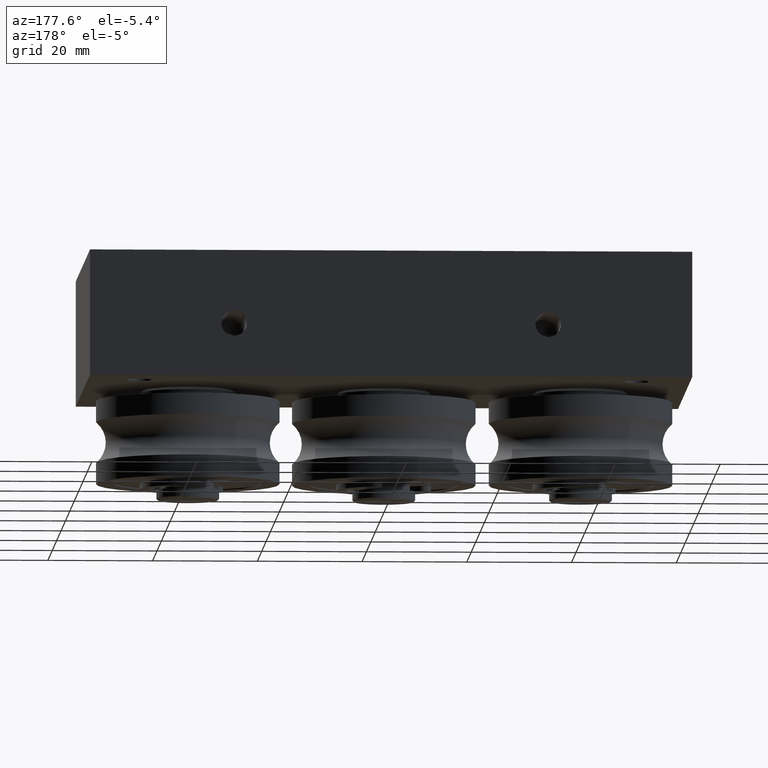
[diagram: clean part render]
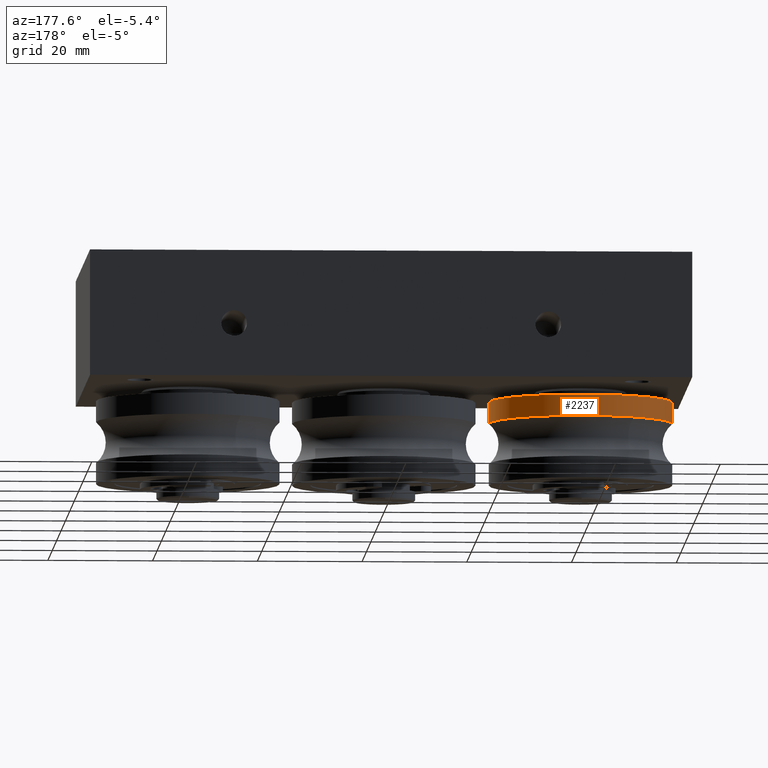
[diagram: same view with one face highlighted and labeled with its STEP entity id]
A machine part, auxiliary view. The second image highlights one B-rep face of the part: STEP entity #2237.
In plain terms, the highlighted cylindrical surface (bore or boss wall) has radius 17.5 mm, axis along (-0, 0, -1).
Its self-contained STEP definition (entity closure, byte-faithful):
#277=CYLINDRICAL_SURFACE('',#2652,17.5);
#376=FACE_OUTER_BOUND('',#549,.T.);
#549=EDGE_LOOP('',(#1832,#1833,#1834,#1835,#1836));
#716=LINE('',#3882,#856);
#856=VECTOR('',#3181,17.5);
#974=CIRCLE('',#2653,17.5);
#975=CIRCLE('',#2654,17.5);
#976=CIRCLE('',#2655,17.5);
#1145=VERTEX_POINT('',#3878);
#1146=VERTEX_POINT('',#3879);
#1147=VERTEX_POINT('',#3881);
#1387=EDGE_CURVE('',#1145,#1146,#974,.T.);
#1388=EDGE_CURVE('',#1145,#1147,#716,.T.);
#1389=EDGE_CURVE('',#1147,#1147,#975,.T.);
#1390=EDGE_CURVE('',#1146,#1145,#976,.T.);
#1832=ORIENTED_EDGE('',*,*,#1387,.F.);
#1833=ORIENTED_EDGE('',*,*,#1388,.T.);
#1834=ORIENTED_EDGE('',*,*,#1389,.T.);
#1835=ORIENTED_EDGE('',*,*,#1388,.F.);
#1836=ORIENTED_EDGE('',*,*,#1390,.F.);
#2237=ADVANCED_FACE('',(#376),#277,.T.);
#2652=AXIS2_PLACEMENT_3D('',#3877,#3177,#3178);
#2653=AXIS2_PLACEMENT_3D('',#3880,#3179,#3180);
#2654=AXIS2_PLACEMENT_3D('',#3883,#3182,#3183);
#2655=AXIS2_PLACEMENT_3D('',#3884,#3184,#3185);
#3177=DIRECTION('center_axis',(0.,0.,1.));
#3178=DIRECTION('ref_axis',(1.,0.,0.));
#3179=DIRECTION('center_axis',(0.,0.,1.));
#3180=DIRECTION('ref_axis',(0.,-1.,0.));
#3181=DIRECTION('',(0.,0.,-1.));
#3182=DIRECTION('center_axis',(0.,0.,1.));
#3183=DIRECTION('ref_axis',(1.,0.,0.));
#3184=DIRECTION('center_axis',(0.,0.,1.));
#3185=DIRECTION('ref_axis',(0.,-1.,0.));
#3877=CARTESIAN_POINT('Origin',(0.,0.,-15.9));
#3878=CARTESIAN_POINT('',(-17.5,-2.14313189850787E-15,-11.8329756630708));
#3879=CARTESIAN_POINT('',(17.5,-2.79955139008714E-15,-11.8329756630708));
#3880=CARTESIAN_POINT('Origin',(0.,0.,-11.8329756630708));
#3881=CARTESIAN_POINT('',(-17.5,0.,-15.9));
#3882=CARTESIAN_POINT('',(-17.5,-2.14313189850787E-15,-15.9));
#3883=CARTESIAN_POINT('Origin',(0.,0.,-15.9));
#3884=CARTESIAN_POINT('Origin',(0.,0.,-11.8329756630708));